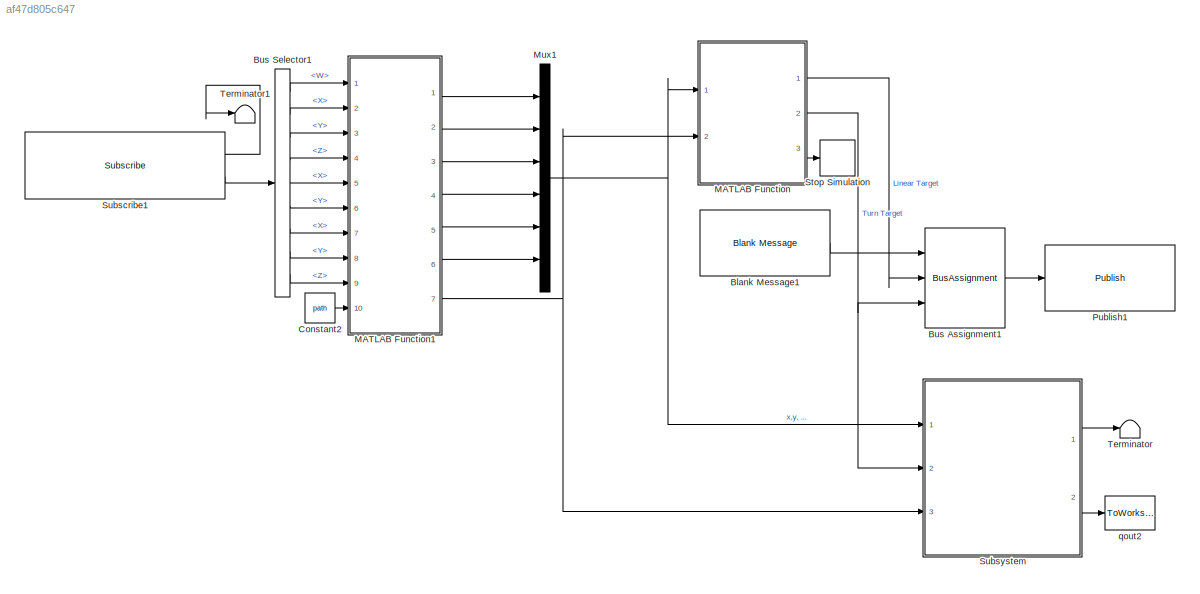
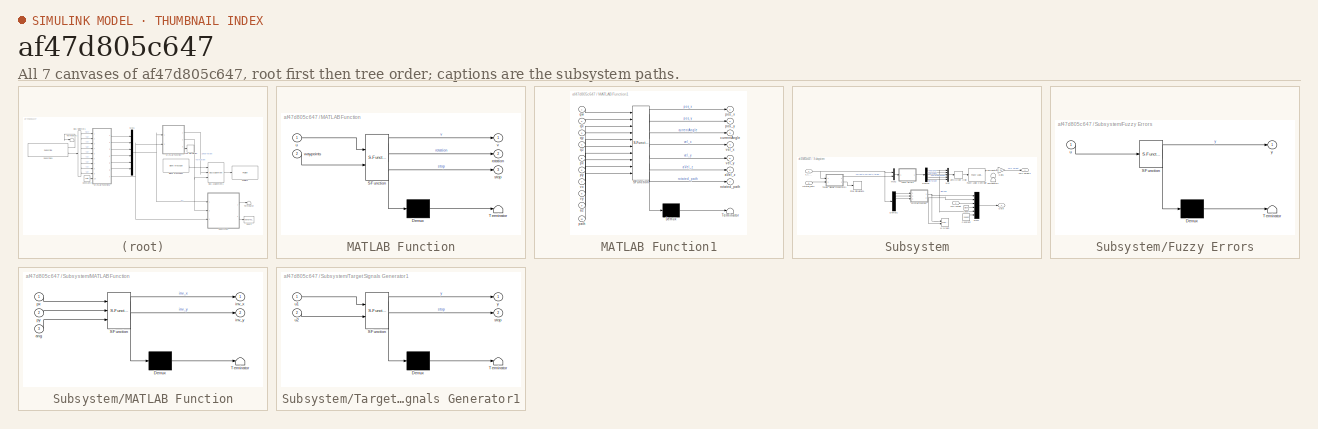
[diagram: thumbnail index - all 7 canvases of the model, root first then tree order]
MODEL slx_af47d805c647
KIND model
CONFIG AbsTol = auto
CONFIG EnableMultiTasking = off
CONFIG FixedStep = 0.001
CONFIG MaxStep = auto
CONFIG MinStep = auto
CONFIG RelTol = 1e-3
CONFIG SampleTimeConstraint = Unconstrained
CONFIG SolverName = ode3
CONFIG StartTime = 0.0
CONFIG StopTime = 1000
BLOCK [Reference] Blank Message1  REF=robotlib/Blank Message
  Ports = [0, 1]
  SourceBlock = robotlib/Blank Message
  SourceProductBaseCode = RR
  SourceType = ROS Blank Message
BLOCK [BusAssignment] Bus Assignment1
  AssignedSignals = Linear.X,Angular.Z
  Ports = [3, 1]
BLOCK [BusSelector] Bus Selector1
  OutputSignals = Pose.Pose.Orientation.W,Pose.Pose.Orientation.X,Pose.Pose.Orientation.Y,Pose.Pose.Orientation.Z,Pose.Pose.Position.X,Pose.Pose.Position.Y,Twist.Twist.Linear.X,Twist.Twist.Linear.Y,Twist.Twist.Angular.Z
  Ports = [1, 9]
BLOCK [Constant] Constant2
  Value = path
BLOCK [SubSystem] MATLAB Function
  ErrorFcn = Stateflow.Translate.translate
  PermitHierarchicalResolution = ExplicitOnly
  Ports = [2, 3]
  RequestExecContextInheritance = off
  SFBlockType = MATLAB Function
  TreatAsAtomicUnit = on
BLOCK [Demux] MATLAB Function/ Demux 
  Outputs = 1
  Ports = [1, 1]
BLOCK [S-Function] MATLAB Function/ SFunction 
  EnableBusSupport = on
  FunctionName = sf_sfun
  PortCounts = [2 4]
  Ports = [2, 4]
  SFcnIsStateOwnerBlock = off
  SFunctionDeploymentMode = off
  Tag = Stateflow S-Function 2
BLOCK [Terminator] MATLAB Function/ Terminator 
BLOCK [Outport] MATLAB Function/rotation
  Port = 2
BLOCK [Outport] MATLAB Function/stop
  Port = 3
BLOCK [Inport] MATLAB Function/u
BLOCK [Outport] MATLAB Function/v
BLOCK [Inport] MATLAB Function/waypoints
  Port = 2
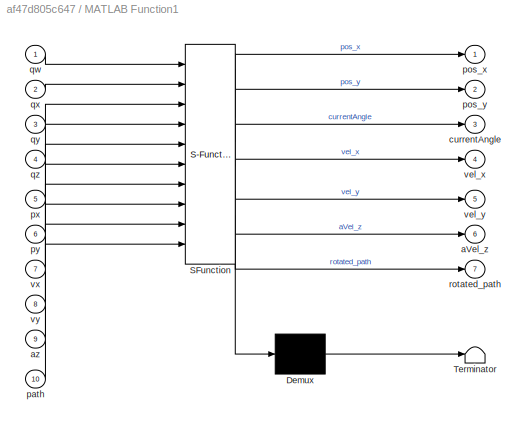
BLOCK [SubSystem] MATLAB Function1
  ErrorFcn = Stateflow.Translate.translate
  PermitHierarchicalResolution = ExplicitOnly
  Ports = [10, 7]
  RequestExecContextInheritance = off
  SFBlockType = MATLAB Function
  TreatAsAtomicUnit = on
BLOCK [Demux] MATLAB Function1/ Demux 
  Outputs = 1
  Ports = [1, 1]
BLOCK [S-Function] MATLAB Function1/ SFunction 
  EnableBusSupport = on
  FunctionName = sf_sfun
  PortCounts = [10 8]
  Ports = [10, 8]
  SFcnIsStateOwnerBlock = off
  SFunctionDeploymentMode = off
  Tag = Stateflow S-Function 1
BLOCK [Terminator] MATLAB Function1/ Terminator 
BLOCK [Outport] MATLAB Function1/aVel_z
  Port = 6
BLOCK [Inport] MATLAB Function1/az
  Port = 9
BLOCK [Outport] MATLAB Function1/currentAngle
  Port = 3
BLOCK [Inport] MATLAB Function1/path
  Port = 10
BLOCK [Outport] MATLAB Function1/pos_x
BLOCK [Outport] MATLAB Function1/pos_y
  Port = 2
BLOCK [Inport] MATLAB Function1/px
  Port = 5
BLOCK [Inport] MATLAB Function1/py
  Port = 6
BLOCK [Inport] MATLAB Function1/qw
BLOCK [Inport] MATLAB Function1/qx
  Port = 2
BLOCK [Inport] MATLAB Function1/qy
  Port = 3
BLOCK [Inport] MATLAB Function1/qz
  Port = 4
BLOCK [Outport] MATLAB Function1/rotated_path
  Port = 7
BLOCK [Outport] MATLAB Function1/vel_x
  Port = 4
BLOCK [Outport] MATLAB Function1/vel_y
  Port = 5
BLOCK [Inport] MATLAB Function1/vx
  Port = 7
BLOCK [Inport] MATLAB Function1/vy
  Port = 8
BLOCK [Mux] Mux1
  DisplayOption = bar
  Inputs = 6
  Ports = [6, 1]
BLOCK [Reference] Publish1  REF=robotlib/Publish
  Ports = [1]
  SourceBlock = robotlib/Publish
  SourceProductBaseCode = RR
  SourceType = ROS Publish
BLOCK [Stop] Stop Simulation
BLOCK [Reference] Subscribe1  REF=robotlib/Subscribe
  Ports = [0, 2]
  SourceBlock = robotlib/Subscribe
  SourceProductBaseCode = RR
  SourceType = ROS Subscribe
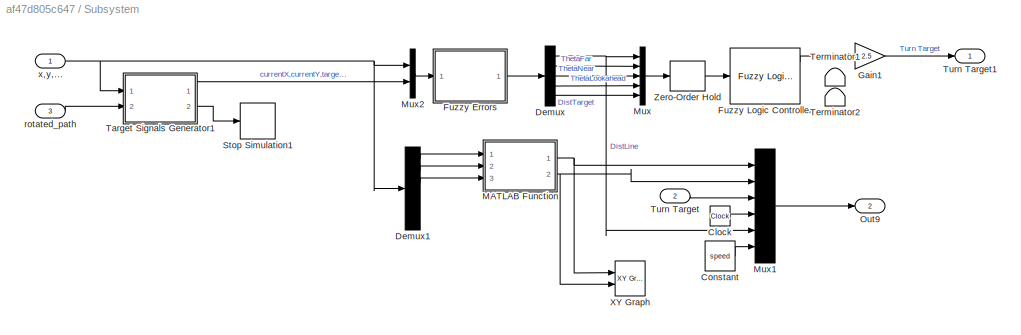
BLOCK [SubSystem] Subsystem
  Ports = [3, 2]
  RequestExecContextInheritance = off
BLOCK [Clock] Subsystem/Clock
BLOCK [Constant] Subsystem/Constant
  Value = speed
BLOCK [Demux] Subsystem/Demux
  Outputs = 5
  Ports = [1, 5]
BLOCK [Demux] Subsystem/Demux1
  Outputs = 6
  Ports = [1, 6]
BLOCK [SubSystem] Subsystem/Fuzzy Errors
  ErrorFcn = Stateflow.Translate.translate
  PermitHierarchicalResolution = ExplicitOnly
  Ports = [1, 1]
  RequestExecContextInheritance = off
  SFBlockType = MATLAB Function
  TreatAsAtomicUnit = on
BLOCK [Demux] Subsystem/Fuzzy Errors/ Demux 
  Outputs = 1
  Ports = [1, 1]
BLOCK [S-Function] Subsystem/Fuzzy Errors/ SFunction 
  EnableBusSupport = on
  FunctionName = sf_sfun
  PortCounts = [1 2]
  Ports = [1, 2]
  SFcnIsStateOwnerBlock = off
  SFunctionDeploymentMode = off
  Tag = Stateflow S-Function 5
BLOCK [Terminator] Subsystem/Fuzzy Errors/ Terminator 
BLOCK [Inport] Subsystem/Fuzzy Errors/u
BLOCK [Outport] Subsystem/Fuzzy Errors/y
  VectorParamsAs1DForOutWhenUnconnected = off
BLOCK [Reference] Subsystem/Fuzzy Logic Controller  REF=fuzblock/Fuzzy Logic   (lib defined in mdl_858b3b3e7478)
Controller
  Ports = [1, 3]
  SourceBlock = fuzblock/Fuzzy Logic \nController
  SourceProductBaseCode = FL
  SourceType = Fuzzy Inference System
BLOCK [Gain] Subsystem/Gain1
  Gain = 2.5
BLOCK [SubSystem] Subsystem/MATLAB Function
  ErrorFcn = Stateflow.Translate.translate
  PermitHierarchicalResolution = ExplicitOnly
  Ports = [3, 2]
  RequestExecContextInheritance = off
  SFBlockType = MATLAB Function
  TreatAsAtomicUnit = on
BLOCK [Demux] Subsystem/MATLAB Function/ Demux 
  Outputs = 1
  Ports = [1, 1]
BLOCK [S-Function] Subsystem/MATLAB Function/ SFunction 
  EnableBusSupport = on
  FunctionName = sf_sfun
  PortCounts = [3 3]
  Ports = [3, 3]
  SFcnIsStateOwnerBlock = off
  SFunctionDeploymentMode = off
  Tag = Stateflow S-Function 4
BLOCK [Terminator] Subsystem/MATLAB Function/ Terminator 
BLOCK [Inport] Subsystem/MATLAB Function/ang
  Port = 3
BLOCK [Outport] Subsystem/MATLAB Function/inv_x
BLOCK [Outport] Subsystem/MATLAB Function/inv_y
  Port = 2
BLOCK [Inport] Subsystem/MATLAB Function/px
BLOCK [Inport] Subsystem/MATLAB Function/py
  Port = 2
BLOCK [Mux] Subsystem/Mux
  DisplayOption = bar
  Inputs = 5
  Ports = [5, 1]
BLOCK [Mux] Subsystem/Mux1
  DisplayOption = bar
  Inputs = 6
  Ports = [6, 1]
BLOCK [Mux] Subsystem/Mux2
  DisplayOption = bar
  Inputs = 2
  Ports = [2, 1]
BLOCK [Outport] Subsystem/Out9
  Port = 2
BLOCK [Stop] Subsystem/Stop Simulation1
BLOCK [SubSystem] Subsystem/Target Signals Generator1
  ErrorFcn = Stateflow.Translate.translate
  PermitHierarchicalResolution = ExplicitOnly
  Ports = [2, 2]
  RequestExecContextInheritance = off
  SFBlockType = MATLAB Function
  TreatAsAtomicUnit = on
BLOCK [Demux] Subsystem/Target Signals Generator1/ Demux 
  Outputs = 1
  Ports = [1, 1]
BLOCK [S-Function] Subsystem/Target Signals Generator1/ SFunction 
  EnableBusSupport = on
  FunctionName = sf_sfun
  PortCounts = [2 3]
  Ports = [2, 3]
  SFcnIsStateOwnerBlock = off
  SFunctionDeploymentMode = off
  Tag = Stateflow S-Function 3
BLOCK [Terminator] Subsystem/Target Signals Generator1/ Terminator 
BLOCK [Outport] Subsystem/Target Signals Generator1/stop
  Port = 2
  VectorParamsAs1DForOutWhenUnconnected = off
BLOCK [Inport] Subsystem/Target Signals Generator1/u1
BLOCK [Inport] Subsystem/Target Signals Generator1/u2
  Port = 2
BLOCK [Outport] Subsystem/Target Signals Generator1/y
  VectorParamsAs1DForOutWhenUnconnected = off
BLOCK [Terminator] Subsystem/Terminator1
BLOCK [Terminator] Subsystem/Terminator2
BLOCK [Inport] Subsystem/Turn Target
  Port = 2
BLOCK [Outport] Subsystem/Turn Target1
BLOCK [Reference] Subsystem/XY Graph  REF=simulink/Sinks/XY Graph
  Ports = [2]
  SourceBlock = simulink/Sinks/XY Graph
  SourceProductBaseCode = SL
  SourceType = XY scope.
BLOCK [ZeroOrderHold] Subsystem/Zero-Order Hold
  SampleTime = .01
BLOCK [Inport] Subsystem/rotated_path
  Port = 3
BLOCK [Inport] Subsystem/x,y,...
BLOCK [Terminator] Terminator
BLOCK [Terminator] Terminator1
BLOCK [ToWorkspace] qout2
  MaxDataPoints = inf
  Ports = [1]
  SampleTime = -1
  VariableName = hbzB_grav2
LINE Blank Message1:1 -> Bus Assignment1:1
LINE Bus Assignment1:1 -> Publish1:1
LINE Bus Selector1:1 -> MATLAB Function1:1
LINE Bus Selector1:2 -> MATLAB Function1:2
LINE Bus Selector1:3 -> MATLAB Function1:3
LINE Bus Selector1:4 -> MATLAB Function1:4
LINE Bus Selector1:5 -> MATLAB Function1:5
LINE Bus Selector1:6 -> MATLAB Function1:6
LINE Bus Selector1:7 -> MATLAB Function1:7
LINE Bus Selector1:8 -> MATLAB Function1:8
LINE Bus Selector1:9 -> MATLAB Function1:9
LINE Constant2:1 -> MATLAB Function1:10
LINE MATLAB Function1:1 -> Mux1:1
LINE MATLAB Function1:2 -> Mux1:2
LINE MATLAB Function1:3 -> Mux1:3
LINE MATLAB Function1:4 -> Mux1:4
LINE MATLAB Function1:5 -> Mux1:5
LINE MATLAB Function1:6 -> Mux1:6
NET MATLAB Function1:7 -> MATLAB Function:2, Subsystem:3
LINE MATLAB Function:1 -> Bus Assignment1:2
NET MATLAB Function:2 -> Bus Assignment1:3, Subsystem:2
LINE MATLAB Function:3 -> Stop Simulation:1
NET Mux1:1 -> MATLAB Function:1, Subsystem:1
LINE Subscribe1:1 -> Terminator1:1
LINE Subscribe1:2 -> Bus Selector1:1
LINE Subsystem/Clock:1 -> Subsystem/Mux1:4
LINE Subsystem/Constant:1 -> Subsystem/Mux1:6
LINE Subsystem/Demux1:1 -> Subsystem/MATLAB Function:1
LINE Subsystem/Demux1:2 -> Subsystem/MATLAB Function:2
LINE Subsystem/Demux1:3 -> Subsystem/MATLAB Function:3
NET Subsystem/Demux:1 -> Subsystem/Mux1:5, Subsystem/Mux:1
LINE Subsystem/Demux:2 -> Subsystem/Mux:2
LINE Subsystem/Demux:3 -> Subsystem/Mux:3
LINE Subsystem/Demux:4 -> Subsystem/Mux:4
LINE Subsystem/Demux:5 -> Subsystem/Mux:5
LINE Subsystem/Fuzzy Errors:1 -> Subsystem/Demux:1
LINE Subsystem/Fuzzy Logic Controller:1 -> Subsystem/Gain1:1
LINE Subsystem/Gain1:1 -> Subsystem/Turn Target1:1
NET Subsystem/MATLAB Function:1 -> Subsystem/Mux1:1, Subsystem/XY Graph:1
NET Subsystem/MATLAB Function:2 -> Subsystem/Mux1:2, Subsystem/XY Graph:2
LINE Subsystem/Mux1:1 -> Subsystem/Out9:1
LINE Subsystem/Mux2:1 -> Subsystem/Fuzzy Errors:1
LINE Subsystem/Mux:1 -> Subsystem/Zero-Order Hold:1
LINE Subsystem/Target Signals Generator1:1 -> Subsystem/Mux2:2
LINE Subsystem/Target Signals Generator1:2 -> Subsystem/Stop Simulation1:1
LINE Subsystem/Turn Target:1 -> Subsystem/Mux1:3
LINE Subsystem/Zero-Order Hold:1 -> Subsystem/Fuzzy Logic Controller:1
LINE Subsystem/rotated_path:1 -> Subsystem/Target Signals Generator1:2
NET Subsystem/x,y,...:1 -> Subsystem/Demux1:1, Subsystem/Mux2:1, Subsystem/Target Signals Generator1:1
LINE Subsystem:1 -> Terminator:1
LINE Subsystem:2 -> qout2:1
note: NET lines group one-source signal fan-out (src -> all destinations, sorted); 1:1 wires keep LINE
CHART MATLAB Function1 states=1 transitions=1
  STATE_LABEL 'eML_blk_kernel()'
  STATE_LABEL 'SCRIPT:\nfunction [pos_x, pos_y, currentAngle, vel_x, vel_y, aVel_z, rotated_path] = fcn(qw, qx, qy, qz, px, py, vx, vy, az, path)\n    persistent init_x;\n    persistent init_y;\n    persistent init_ang;\n    persistent rotation;\n    if isempty(init_x)\n        init_x = px;\n        init_y = py;\n        init_ang = -atan2(2*(qw*qz + qx*qy),1-2*(qy^2 + qz^2));\n        if((init_ang < -pi) || (pi < init_ang...<+484ch>'
CHART MATLAB Function states=1 transitions=1
  STATE_LABEL 'eML_blk_kernel()'
  STATE_LABEL 'SCRIPT:\nfunction [v, rotation, stop] = HBZ(u, waypoints)\n%-------------------Persistent Variable Initialization--------------------%\npersistent delta_old;\npersistent path_ind;\npersistent pathlength;\npersistent pathPre;\npersistent path;\npersistent delta;\n\nif isempty(path_ind)\n    delta_old = 0;\n    delta = 0;\n    path_ind = 1;\n    pathPre=waypoints;\n    [pathlength,~]=size(pathPre);  \n   path=[path...<+3608ch>'
CHART Subsystem/Target Signals Generator1 states=1 transitions=1
  STATE_LABEL 'eML_blk_kernel()'
  STATE_LABEL 'SCRIPT:\nfunction [y,stop] = fcn(u1,u2)\npersistent pathcount;\npersistent pathlength;\npersistent path; %error in code, initially used path but this is already a matlab function\npersistent pathPre;\n\nif isempty(pathcount)\n   pathcount=1;\n   pathPre=u2;\n   [pathlength,~]=size(pathPre);  \n   path=[pathPre; pathPre(pathlength,1)+100 pathPre(pathlength,2)+100]; %sim takes multiple iterations to stop after...<+1100ch>'
CHART Subsystem/MATLAB Function states=1 transitions=1
  STATE_LABEL 'eML_blk_kernel()'
  STATE_LABEL 'SCRIPT:\nfunction [inv_x, inv_y] = fcn(px, py, ang)\n    persistent init_ang;\n    persistent rotation_inv;\n    if isempty(init_ang)\n        init_ang = -ang;\n        rotation_inv = [cos(init_ang), sin(init_ang);\n                       -sin(init_ang),  cos(init_ang)];\n    end\n    rotated_path = [px,py] * rotation_inv;\n    inv_x = rotated_path(1);\n    inv_y = rotated_path(2);\nend'
CHART Subsystem/Fuzzy Errors states=1 transitions=1
  STATE_LABEL 'eML_blk_kernel()'
  STATE_LABEL 'SCRIPT:\nfunction y  = fcn(u)\nkLOOK = 0.95;\n\npos=[u(1), u(2)]; % [x,y]\ncurrentAngle=u(3);\ncurrentPoint=[u(7) u(8)];\ntarget=[u(9) u(10)];\nfuture=[u(11) u(12)];\n\nA = [(currentPoint(2)-target(2)), target(1)-currentPoint(1); target(1)-currentPoint(1), target(2)-currentPoint(2)];\nb = [ target(1)*currentPoint(2)-currentPoint(1)*target(2); pos(1)*(target(1)-currentPoint(1)) + pos(2)*(target(2)-currentPoin...<+1230ch>'
CHART  states=0 transitions=0
CHART  states=0 transitions=0
CHART  states=0 transitions=0
CHART  states=0 transitions=0
CHART  states=0 transitions=0
